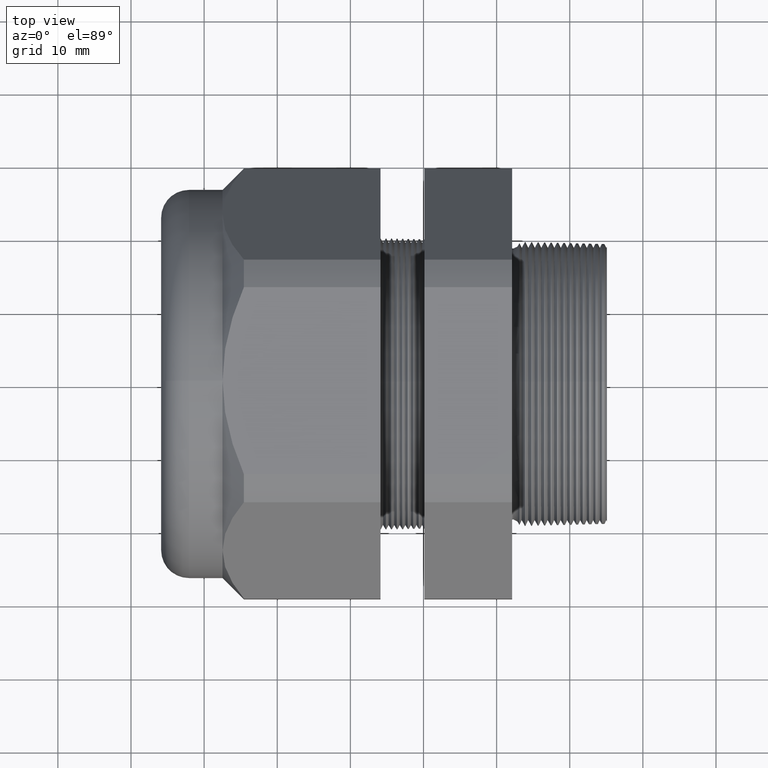
[diagram: clean part render]
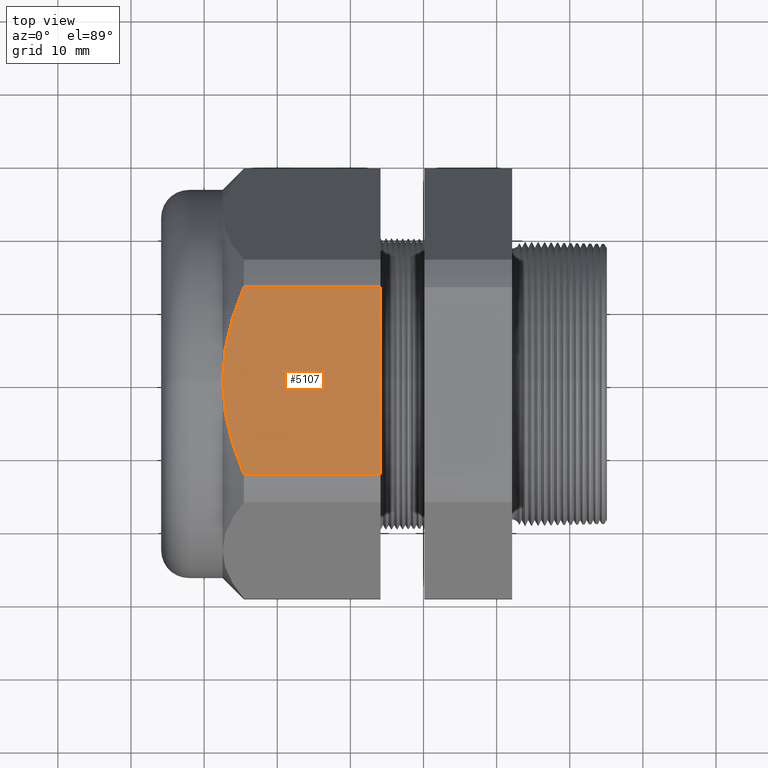
[diagram: same view with one face highlighted and labeled with its STEP entity id]
A machine part, top view. The second image highlights one B-rep face of the part: STEP entity #5107.
In plain terms, the highlighted planar face has unit normal (0, 0, 1).
Its self-contained STEP definition (entity closure, byte-faithful):
#120 = VERTEX_POINT ( 'NONE', #1129 ) ;
#657 = ORIENTED_EDGE ( 'NONE', *, *, #5133, .F. ) ;
#658 = ORIENTED_EDGE ( 'NONE', *, *, #665, .F. ) ;
#660 = EDGE_CURVE ( 'NONE', #120, #5124, #2065, .T. ) ;
#662 = ORIENTED_EDGE ( 'NONE', *, *, #660, .T. ) ;
#665 = EDGE_CURVE ( 'NONE', #5097, #5134, #2097, .T. ) ;
#667 = ORIENTED_EDGE ( 'NONE', *, *, #669, .T. ) ;
#668 = EDGE_CURVE ( 'NONE', #5097, #671, #2092, .T. ) ;
#669 = EDGE_CURVE ( 'NONE', #671, #120, #2082, .T. ) ;
#671 = VERTEX_POINT ( 'NONE', #2083 ) ;
#1129 = CARTESIAN_POINT ( 'NONE',  ( -1.869292000000000000, 0.0000000000000000000, 1.044999999999999700 ) ) ;
#2057 = CARTESIAN_POINT ( 'NONE',  ( -1.754341999999999800, -0.5034471198646398600, 1.044999999999999700 ) ) ;
#2058 = CARTESIAN_POINT ( 'NONE',  ( -1.771541667379294500, -0.4638188185209417600, 1.044999999999999500 ) ) ;
#2059 = CARTESIAN_POINT ( 'NONE',  ( -1.787425944234739100, -0.4234483023531738200, 1.044999999999999700 ) ) ;
#2060 = CARTESIAN_POINT ( 'NONE',  ( -1.815810422140071700, -0.3407977905260951600, 1.044999999999999500 ) ) ;
#2061 = CARTESIAN_POINT ( 'NONE',  ( -1.828087416907577800, -0.2991342696643450900, 1.044999999999999300 ) ) ;
#2062 = CARTESIAN_POINT ( 'NONE',  ( -1.858213035920961900, -0.1730359448115065300, 1.044999999999999700 ) ) ;
#2063 = CARTESIAN_POINT ( 'NONE',  ( -1.869292000000000200, -0.08745202795108919500, 1.044999999999999700 ) ) ;
#2064 = CARTESIAN_POINT ( 'NONE',  ( -1.869292000000000000, 0.0000000000000000000, 1.044999999999999700 ) ) ;
#2065 = B_SPLINE_CURVE_WITH_KNOTS ( 'NONE', 3,
 ( #2064, #2063, #2062, #2061, #2060, #2059, #2058, #2057 ),
 .UNSPECIFIED., .F., .F.,
 ( 4, 2, 2, 4 ),
 ( 0.03346784229927656000, 0.04001292135983691700, 0.04328546089011709600, 0.04655800042039727500 ),
 .UNSPECIFIED. ) ;
#2070 = CARTESIAN_POINT ( 'NONE',  ( -1.868601348862168400, 0.04373691554683258000, 1.044999999999999700 ) ) ;
#2071 = CARTESIAN_POINT ( 'NONE',  ( -1.865889267300422800, 0.08713363206265289900, 1.044999999999999700 ) ) ;
#2072 = CARTESIAN_POINT ( 'NONE',  ( -1.863869075271275900, 0.1087024430698537300, 1.045000000000000200 ) ) ;
#2073 = CARTESIAN_POINT ( 'NONE',  ( -1.855917652805893600, 0.1730400535522954300, 1.044999999999999700 ) ) ;
#2074 = CARTESIAN_POINT ( 'NONE',  ( -1.848093749831172700, 0.2154396742832507300, 1.044999999999999900 ) ) ;
#2075 = CARTESIAN_POINT ( 'NONE',  ( -1.828018536546963200, 0.2993753196147933000, 1.044999999999999700 ) ) ;
#2076 = CARTESIAN_POINT ( 'NONE',  ( -1.815769846189895200, 0.3409118552550479700, 1.044999999999999500 ) ) ;
#2077 = CARTESIAN_POINT ( 'NONE',  ( -1.794564483841140100, 0.4026641939678183300, 1.044999999999999700 ) ) ;
#2078 = CARTESIAN_POINT ( 'NONE',  ( -1.787018621072150100, 0.4231631440832466800, 1.044999999999999500 ) ) ;
#2079 = CARTESIAN_POINT ( 'NONE',  ( -1.771216119577155000, 0.4636207977166996200, 1.044999999999999700 ) ) ;
#2080 = CARTESIAN_POINT ( 'NONE',  ( -1.762942910033211700, 0.4836304892804664800, 1.044999999999999700 ) ) ;
#2081 = CARTESIAN_POINT ( 'NONE',  ( -1.754342000000000100, 0.5034471198646395300, 1.044999999999999700 ) ) ;
#2082 = B_SPLINE_CURVE_WITH_KNOTS ( 'NONE', 3,
 ( #2081, #2080, #2079, #2078, #2077, #2076, #2075, #2074, #2073, #2072, #2071, #2070, #2133, #2132 ),
 .UNSPECIFIED., .F., .F.,
 ( 4, 2, 2, 2, 2, 2, 4 ),
 ( 0.02039820435195577700, 0.02203190909537087300, 0.02366561383878597300, 0.02693302332561617000, 0.03020043281244636600, 0.03183413755586146600, 0.03346784229927656000 ),
 .UNSPECIFIED. ) ;
#2083 = CARTESIAN_POINT ( 'NONE',  ( -1.754342000000000100, 0.5034471198646395300, 1.044999999999999700 ) ) ;
#2084 = DIRECTION ( 'NONE',  ( -1.000000000000000000, 0.0000000000000000000, 0.0000000000000000000 ) ) ;
#2085 = VECTOR ( 'NONE', #2084, 39.37007874015748100 ) ;
#2086 = CARTESIAN_POINT ( 'NONE',  ( 0.2000000000000000400, 0.5034471198646395300, 1.044999999999999700 ) ) ;
#2092 = LINE ( 'NONE', #2086, #2085 ) ;
#2094 = DIRECTION ( 'NONE',  ( 0.0000000000000000000, -1.000000000000000000, 0.0000000000000000000 ) ) ;
#2095 = VECTOR ( 'NONE', #2094, 39.37007874015748100 ) ;
#2096 = CARTESIAN_POINT ( 'NONE',  ( -1.018802799999999800, 0.7850000000000001400, 1.044999999999999700 ) ) ;
#2097 = LINE ( 'NONE', #2096, #2095 ) ;
#2132 = CARTESIAN_POINT ( 'NONE',  ( -1.869292000000000000, 0.0000000000000000000, 1.044999999999999700 ) ) ;
#2133 = CARTESIAN_POINT ( 'NONE',  ( -1.869291999999999700, 0.02182873446798840400, 1.044999999999999300 ) ) ;
#3455 = DIRECTION ( 'NONE',  ( 1.000000000000000000, 0.0000000000000000000, 0.0000000000000000000 ) ) ;
#3456 = DIRECTION ( 'NONE',  ( 0.0000000000000000000, 0.0000000000000000000, 1.000000000000000000 ) ) ;
#3457 = CARTESIAN_POINT ( 'NONE',  ( 0.2000000000000000400, -0.5034471198646395300, 1.044999999999999700 ) ) ;
#3458 = AXIS2_PLACEMENT_3D ( 'NONE', #3457, #3456, #3455 ) ;
#3459 = PLANE ( 'NONE',  #3458 ) ;
#3460 = FACE_OUTER_BOUND ( 'NONE', #5096, .T. ) ;
#3468 = CARTESIAN_POINT ( 'NONE',  ( -1.018802799999999800, 0.5034471198646395300, 1.044999999999999700 ) ) ;
#3493 = CARTESIAN_POINT ( 'NONE',  ( -1.754341999999999800, -0.5034471198646398600, 1.044999999999999700 ) ) ;
#3525 = CARTESIAN_POINT ( 'NONE',  ( -1.018802799999999800, -0.5034471198646400800, 1.044999999999999300 ) ) ;
#3526 = DIRECTION ( 'NONE',  ( -1.000000000000000000, 0.0000000000000000000, 0.0000000000000000000 ) ) ;
#3527 = VECTOR ( 'NONE', #3526, 39.37007874015748100 ) ;
#3528 = CARTESIAN_POINT ( 'NONE',  ( 0.2000000000000000400, -0.5034471198646400800, 1.044999999999999300 ) ) ;
#3529 = LINE ( 'NONE', #3528, #3527 ) ;
#5096 = EDGE_LOOP ( 'NONE', ( #5098, #667, #662, #657, #658 ) ) ;
#5097 = VERTEX_POINT ( 'NONE', #3468 ) ;
#5098 = ORIENTED_EDGE ( 'NONE', *, *, #668, .T. ) ;
#5107 = ADVANCED_FACE ( 'NONE', ( #3460 ), #3459, .T. ) ;
#5124 = VERTEX_POINT ( 'NONE', #3493 ) ;
#5133 = EDGE_CURVE ( 'NONE', #5134, #5124, #3529, .T. ) ;
#5134 = VERTEX_POINT ( 'NONE', #3525 ) ;